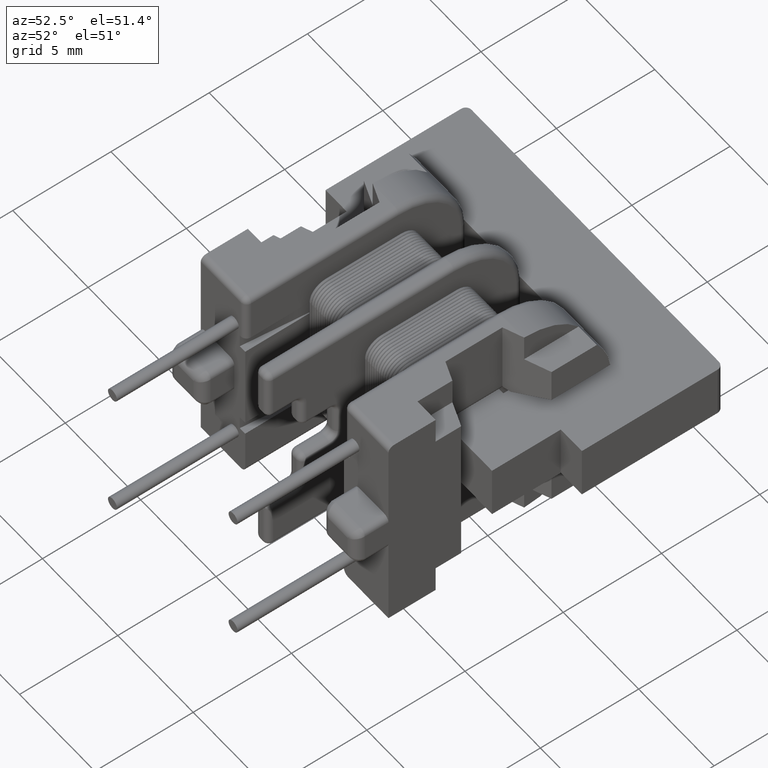
[diagram: clean part render]
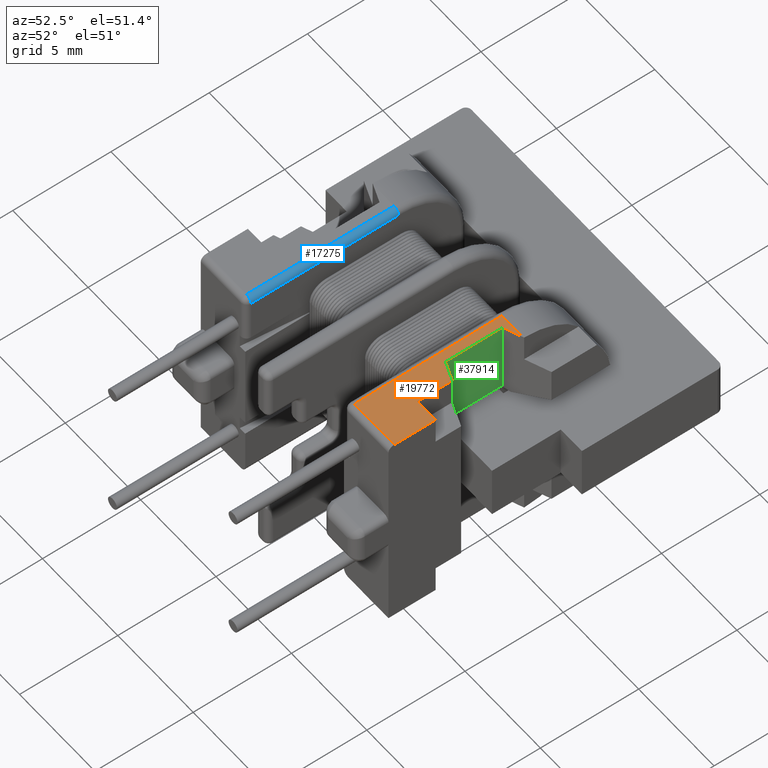
[diagram: same view with three faces highlighted in distinct colors, each labeled with its STEP entity id]
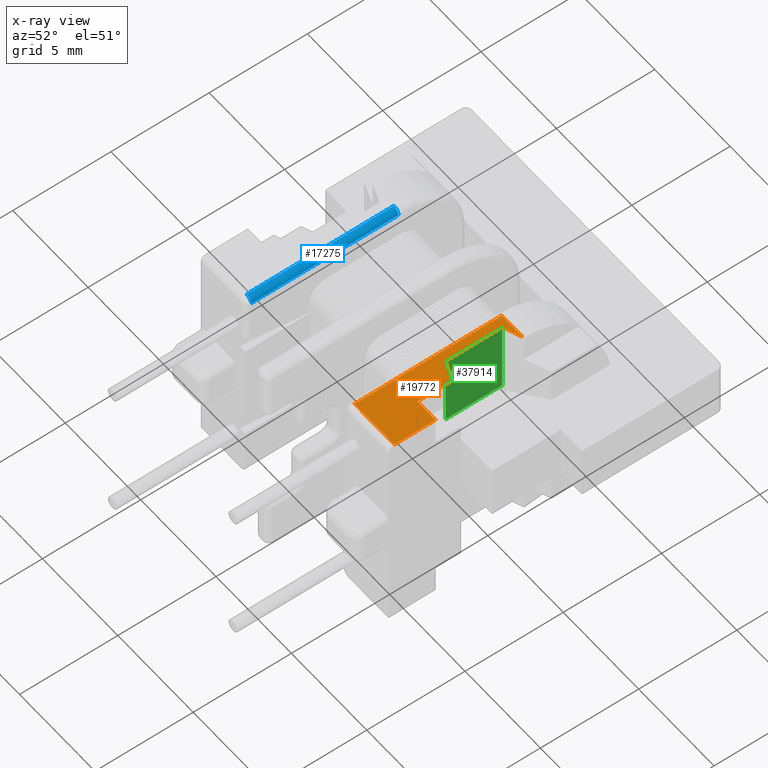
[diagram: x-ray of the same camera — body ghosted, the three highlighted faces saturated]
A machine part, auxiliary view with three faces highlighted in distinct colors.
The next image is the same camera in x-ray (body ghosted, the three faces saturated) — at least one of them is partly hidden behind the body in this view.
Their STEP definitions:

[orange] entity #19772 — the highlighted planar face has unit normal (0, 0, 1).
#346 = EDGE_CURVE ( 'NONE', #30128, #35491, #5046, .T. ) ;
#585 = VECTOR ( 'NONE', #17607, 1000.000000000000114 ) ;
#625 = CARTESIAN_POINT ( 'NONE',  ( 4.128147453515078169, -1.471011783947819396, 5.499999999999999112 ) ) ;
#1152 = ORIENTED_EDGE ( 'NONE', *, *, #21452, .T. ) ;
#1204 = CARTESIAN_POINT ( 'NONE',  ( 4.075000000000001954, -1.455493882711762721, 5.499999999999999112 ) ) ;
#1815 = ORIENTED_EDGE ( 'NONE', *, *, #10596, .T. ) ;
#1975 = ORIENTED_EDGE ( 'NONE', *, *, #28385, .T. ) ;
#2127 = CARTESIAN_POINT ( 'NONE',  ( 5.025000000000003020, 5.300000000000001599, 5.499999999999999112 ) ) ;
#4088 = DIRECTION ( 'NONE',  ( 0.0000000000000000000, 0.0000000000000000000, 1.000000000000000000 ) ) ;
#4110 = DIRECTION ( 'NONE',  ( 0.0000000000000000000, 0.0000000000000000000, 1.000000000000000000 ) ) ;
#4137 = VERTEX_POINT ( 'NONE', #14767 ) ;
#4602 = DIRECTION ( 'NONE',  ( 0.0000000000000000000, -1.000000000000000000, 0.0000000000000000000 ) ) ;
#5046 = LINE ( 'NONE', #8635, #14891 ) ;
#5344 = ORIENTED_EDGE ( 'NONE', *, *, #23810, .F. ) ;
#5636 = LINE ( 'NONE', #6524, #22489 ) ;
#5987 = VECTOR ( 'NONE', #30586, 1000.000000000000000 ) ;
#6524 = CARTESIAN_POINT ( 'NONE',  ( 6.224999999999999645, 5.299999999999999822, 5.499999999999999112 ) ) ;
#6705 = DIRECTION ( 'NONE',  ( 1.000000000000000000, 0.0000000000000000000, -0.0000000000000000000 ) ) ;
#7891 = LINE ( 'NONE', #2127, #22839 ) ;
#8183 = ORIENTED_EDGE ( 'NONE', *, *, #346, .F. ) ;
#8518 = DIRECTION ( 'NONE',  ( 0.9299607201739313878, -0.3676588893710893147, 0.0000000000000000000 ) ) ;
#8635 = CARTESIAN_POINT ( 'NONE',  ( 16.17006545513980953, -6.231770063659924475, 5.499999999999999112 ) ) ;
#9069 = VECTOR ( 'NONE', #23704, 1000.000000000000000 ) ;
#9075 = CARTESIAN_POINT ( 'NONE',  ( 0.0000000000000000000, -3.600000000000000089, 5.499999999999999112 ) ) ;
#10130 = VERTEX_POINT ( 'NONE', #16227 ) ;
#10596 = EDGE_CURVE ( 'NONE', #30128, #27787, #31727, .T. ) ;
#10717 = VECTOR ( 'NONE', #21536, 1000.000000000000000 ) ;
#10970 = LINE ( 'NONE', #9075, #9069 ) ;
#11788 = VERTEX_POINT ( 'NONE', #17204 ) ;
#12005 = CARTESIAN_POINT ( 'NONE',  ( 5.025000000000003020, -3.600000000000000089, 5.499999999999999112 ) ) ;
#12830 = DIRECTION ( 'NONE',  ( 1.000000000000000000, 0.0000000000000000000, 0.0000000000000000000 ) ) ;
#13042 = LINE ( 'NONE', #36475, #10717 ) ;
#14154 = VERTEX_POINT ( 'NONE', #12005 ) ;
#14767 = CARTESIAN_POINT ( 'NONE',  ( 3.574999999999998401, 1.799999999999999600, 5.499999999999999112 ) ) ;
#14891 = VECTOR ( 'NONE', #8518, 1000.000000000000114 ) ;
#15656 = CARTESIAN_POINT ( 'NONE',  ( 5.025000000000003020, -1.825581395348837566, 5.499999999999999112 ) ) ;
#16008 = PLANE ( 'NONE',  #18703 ) ;
#16227 = CARTESIAN_POINT ( 'NONE',  ( 6.225000000000002309, -3.600000000000000089, 5.499999999999999112 ) ) ;
#16333 = CARTESIAN_POINT ( 'NONE',  ( 4.960294117647057632, 1.799999999999998712, 5.499999999999999112 ) ) ;
#16528 = LINE ( 'NONE', #32985, #585 ) ;
#17204 = CARTESIAN_POINT ( 'NONE',  ( 6.224999999999999645, -5.700000000000001066, 5.499999999999999112 ) ) ;
#17607 = DIRECTION ( 'NONE',  ( -0.9299607201739313878, -0.3676588893710893147, 0.0000000000000000000 ) ) ;
#17897 = VERTEX_POINT ( 'NONE', #26652 ) ;
#18563 = ORIENTED_EDGE ( 'NONE', *, *, #20323, .T. ) ;
#18703 = AXIS2_PLACEMENT_3D ( 'NONE', #19120, #4110, #6705 ) ;
#19119 = ORIENTED_EDGE ( 'NONE', *, *, #25136, .T. ) ;
#19120 = CARTESIAN_POINT ( 'NONE',  ( 20.72913734077280523, 5.299999999999999822, 5.499999999999999112 ) ) ;
#19772 = ADVANCED_FACE ( 'NONE', ( #23086 ), #16008, .T. ) ;
#20323 = EDGE_CURVE ( 'NONE', #11788, #10130, #5636, .T. ) ;
#20453 = VECTOR ( 'NONE', #37596, 1000.000000000000000 ) ;
#20782 = ORIENTED_EDGE ( 'NONE', *, *, #34460, .F. ) ;
#21452 = EDGE_CURVE ( 'NONE', #17897, #11788, #38704, .T. ) ;
#21536 = DIRECTION ( 'NONE',  ( -1.000000000000000000, 0.0000000000000000000, 0.0000000000000000000 ) ) ;
#22240 = ORIENTED_EDGE ( 'NONE', *, *, #35738, .F. ) ;
#22377 = LINE ( 'NONE', #27821, #5987 ) ;
#22489 = VECTOR ( 'NONE', #30212, 1000.000000000000000 ) ;
#22648 = CARTESIAN_POINT ( 'NONE',  ( 20.72913734077280523, -5.700000000000001066, 5.499999999999999112 ) ) ;
#22839 = VECTOR ( 'NONE', #4602, 1000.000000000000000 ) ;
#23086 = FACE_OUTER_BOUND ( 'NONE', #30419, .T. ) ;
#23704 = DIRECTION ( 'NONE',  ( 1.000000000000000000, -0.0000000000000000000, 0.0000000000000000000 ) ) ;
#23810 = EDGE_CURVE ( 'NONE', #14154, #10130, #10970, .T. ) ;
#25136 = EDGE_CURVE ( 'NONE', #30208, #4137, #13042, .T. ) ;
#25234 = CARTESIAN_POINT ( 'NONE',  ( 3.574999999999999734, -5.700000000000001066, 5.499999999999999112 ) ) ;
#25431 = LINE ( 'NONE', #25234, #35708 ) ;
#26652 = CARTESIAN_POINT ( 'NONE',  ( 3.574999999999999734, -5.700000000000001954, 5.499999999999999112 ) ) ;
#27787 = VERTEX_POINT ( 'NONE', #1204 ) ;
#27821 = CARTESIAN_POINT ( 'NONE',  ( 4.075000000000001954, 5.299999999999999822, 5.499999999999999112 ) ) ;
#28385 = EDGE_CURVE ( 'NONE', #4137, #17897, #25431, .T. ) ;
#29051 = AXIS2_PLACEMENT_3D ( 'NONE', #30762, #4088, #12830 ) ;
#30128 = VERTEX_POINT ( 'NONE', #625 ) ;
#30208 = VERTEX_POINT ( 'NONE', #16333 ) ;
#30212 = DIRECTION ( 'NONE',  ( 0.0000000000000000000, 1.000000000000000000, 0.0000000000000000000 ) ) ;
#30419 = EDGE_LOOP ( 'NONE', ( #1815, #35833, #22240, #19119, #1975, #1152, #18563, #5344, #20782, #8183 ) ) ;
#30586 = DIRECTION ( 'NONE',  ( 0.0000000000000000000, -1.000000000000000000, 0.0000000000000000000 ) ) ;
#30762 = CARTESIAN_POINT ( 'NONE',  ( 4.017849786703752812, -1.750000000000000444, 5.500000000000000000 ) ) ;
#30981 = DIRECTION ( 'NONE',  ( -0.0000000000000000000, -1.000000000000000000, 0.0000000000000000000 ) ) ;
#31727 = CIRCLE ( 'NONE', #29051, 0.2999999999999999334 ) ;
#32985 = CARTESIAN_POINT ( 'NONE',  ( 19.79429370584140102, 7.664604488355904799, 5.499999999999999112 ) ) ;
#33118 = EDGE_CURVE ( 'NONE', #37009, #27787, #22377, .T. ) ;
#34460 = EDGE_CURVE ( 'NONE', #35491, #14154, #7891, .T. ) ;
#35491 = VERTEX_POINT ( 'NONE', #15656 ) ;
#35611 = CARTESIAN_POINT ( 'NONE',  ( 4.075000000000001954, 1.449999999999999956, 5.500000000000000000 ) ) ;
#35708 = VECTOR ( 'NONE', #30981, 1000.000000000000000 ) ;
#35738 = EDGE_CURVE ( 'NONE', #30208, #37009, #16528, .T. ) ;
#35833 = ORIENTED_EDGE ( 'NONE', *, *, #33118, .F. ) ;
#36475 = CARTESIAN_POINT ( 'NONE',  ( 20.72913734077280523, 1.799999999999999600, 5.499999999999999112 ) ) ;
#37009 = VERTEX_POINT ( 'NONE', #35611 ) ;
#37596 = DIRECTION ( 'NONE',  ( 1.000000000000000000, -0.0000000000000000000, -0.0000000000000000000 ) ) ;
#38704 = LINE ( 'NONE', #22648, #20453 ) ;

[blue] entity #17275 — the highlighted cylindrical surface (edge-blend (fillet) strip) has radius 0.3 mm, axis along (0, -1, 0).
#269 = CARTESIAN_POINT ( 'NONE',  ( -3.574999999999998401, 1.799999999999999600, 5.499999999999999112 ) ) ;
#373 = CARTESIAN_POINT ( 'NONE',  ( -3.274999999999999911, -5.700000000000001066, 5.199999999999999289 ) ) ;
#2069 = ORIENTED_EDGE ( 'NONE', *, *, #14512, .F. ) ;
#3101 = DIRECTION ( 'NONE',  ( 0.0000000000000000000, -1.000000000000000000, 0.0000000000000000000 ) ) ;
#4161 = AXIS2_PLACEMENT_3D ( 'NONE', #15255, #3101, #32872 ) ;
#7094 = DIRECTION ( 'NONE',  ( 0.0000000000000000000, 0.0000000000000000000, -1.000000000000000000 ) ) ;
#7602 = VERTEX_POINT ( 'NONE', #23177 ) ;
#8224 = VECTOR ( 'NONE', #35445, 1000.000000000000000 ) ;
#9353 = VECTOR ( 'NONE', #30627, 1000.000000000000000 ) ;
#9534 = DIRECTION ( 'NONE',  ( 0.0000000000000000000, -1.000000000000000000, 0.0000000000000000000 ) ) ;
#9960 = CARTESIAN_POINT ( 'NONE',  ( -3.574999999999999734, -5.700000000000001066, 5.199999999999999289 ) ) ;
#11835 = VERTEX_POINT ( 'NONE', #15626 ) ;
#14133 = EDGE_CURVE ( 'NONE', #11835, #38631, #38565, .T. ) ;
#14357 = CYLINDRICAL_SURFACE ( 'NONE', #35478, 0.2999999999999999334 ) ;
#14512 = EDGE_CURVE ( 'NONE', #11835, #38129, #35325, .T. ) ;
#15255 = CARTESIAN_POINT ( 'NONE',  ( -3.574999999999999734, 1.799999999999999600, 5.199999999999999289 ) ) ;
#15626 = CARTESIAN_POINT ( 'NONE',  ( -3.274999999999999911, 1.799999999999999600, 5.199999999999999289 ) ) ;
#16991 = CIRCLE ( 'NONE', #18707, 0.2999999999999999334 ) ;
#17275 = ADVANCED_FACE ( 'NONE', ( #31194 ), #14357, .T. ) ;
#17568 = CARTESIAN_POINT ( 'NONE',  ( -3.274999999999999911, -5.700000000000001066, 5.199999999999999289 ) ) ;
#18707 = AXIS2_PLACEMENT_3D ( 'NONE', #9960, #34264, #7094 ) ;
#20520 = ORIENTED_EDGE ( 'NONE', *, *, #14133, .T. ) ;
#21272 = ORIENTED_EDGE ( 'NONE', *, *, #34171, .F. ) ;
#23177 = CARTESIAN_POINT ( 'NONE',  ( -3.574999999999998401, -5.700000000000001066, 5.499999999999999112 ) ) ;
#23983 = EDGE_CURVE ( 'NONE', #38129, #7602, #16991, .T. ) ;
#29177 = EDGE_LOOP ( 'NONE', ( #34923, #2069, #20520, #21272 ) ) ;
#29403 = LINE ( 'NONE', #269, #9353 ) ;
#30175 = CARTESIAN_POINT ( 'NONE',  ( -3.574999999999998401, 5.299999999999999822, 5.199999999999999289 ) ) ;
#30309 = DIRECTION ( 'NONE',  ( 0.0000000000000000000, 0.0000000000000000000, -1.000000000000000000 ) ) ;
#30627 = DIRECTION ( 'NONE',  ( 0.0000000000000000000, 1.000000000000000000, 0.0000000000000000000 ) ) ;
#31194 = FACE_OUTER_BOUND ( 'NONE', #29177, .T. ) ;
#32872 = DIRECTION ( 'NONE',  ( 0.0000000000000000000, 0.0000000000000000000, -1.000000000000000000 ) ) ;
#32992 = CARTESIAN_POINT ( 'NONE',  ( -3.574999999999998401, 1.799999999999999600, 5.499999999999999112 ) ) ;
#34171 = EDGE_CURVE ( 'NONE', #7602, #38631, #29403, .T. ) ;
#34264 = DIRECTION ( 'NONE',  ( 0.0000000000000000000, -1.000000000000000000, 0.0000000000000000000 ) ) ;
#34923 = ORIENTED_EDGE ( 'NONE', *, *, #23983, .F. ) ;
#35325 = LINE ( 'NONE', #17568, #8224 ) ;
#35445 = DIRECTION ( 'NONE',  ( 0.0000000000000000000, -1.000000000000000000, -0.0000000000000000000 ) ) ;
#35478 = AXIS2_PLACEMENT_3D ( 'NONE', #30175, #9534, #30309 ) ;
#38129 = VERTEX_POINT ( 'NONE', #373 ) ;
#38565 = CIRCLE ( 'NONE', #4161, 0.2999999999999999334 ) ;
#38631 = VERTEX_POINT ( 'NONE', #32992 ) ;

[green] entity #37914 — the highlighted planar face has unit normal (-1, 0, -0).
#1039 = LINE ( 'NONE', #21879, #23977 ) ;
#1089 = FACE_OUTER_BOUND ( 'NONE', #30680, .T. ) ;
#1174 = EDGE_CURVE ( 'NONE', #13229, #28398, #7215, .T. ) ;
#1204 = CARTESIAN_POINT ( 'NONE',  ( 4.075000000000001954, -1.455493882711762721, 5.499999999999999112 ) ) ;
#4118 = CARTESIAN_POINT ( 'NONE',  ( 4.075000000000001954, 1.449999999999999956, 1.749999999999999778 ) ) ;
#5983 = CARTESIAN_POINT ( 'NONE',  ( 4.075000000000001954, 1.449999999999999734, 1.760416102808463945 ) ) ;
#5987 = VECTOR ( 'NONE', #30586, 1000.000000000000000 ) ;
#7215 = LINE ( 'NONE', #4118, #22645 ) ;
#8003 = VERTEX_POINT ( 'NONE', #27486 ) ;
#8875 = EDGE_CURVE ( 'NONE', #28398, #8003, #13298, .T. ) ;
#9096 = DIRECTION ( 'NONE',  ( -0.0000000000000000000, -0.0000000000000000000, 1.000000000000000000 ) ) ;
#12033 = CARTESIAN_POINT ( 'NONE',  ( 4.075000000000001954, 1.450101811852192446, 1.755205633526875530 ) ) ;
#13118 = DIRECTION ( 'NONE',  ( -0.0000000000000000000, 1.000000000000000000, -0.0000000000000000000 ) ) ;
#13229 = VERTEX_POINT ( 'NONE', #24008 ) ;
#13298 = B_SPLINE_CURVE_WITH_KNOTS ( 'NONE', 3,
 ( #24158, #12033, #5983, #26915 ),
 .UNSPECIFIED., .F., .F.,
 ( 4, 4 ),
 ( 0.0000000000000000000, 1.562856075615795906E-05 ),
 .UNSPECIFIED. ) ;
#13465 = LINE ( 'NONE', #18350, #30314 ) ;
#16395 = AXIS2_PLACEMENT_3D ( 'NONE', #31561, #37590, #25808 ) ;
#18350 = CARTESIAN_POINT ( 'NONE',  ( 4.075000000000001954, 1.449999999999999956, -5.300000000000000711 ) ) ;
#18405 = ORIENTED_EDGE ( 'NONE', *, *, #19609, .T. ) ;
#18479 = EDGE_CURVE ( 'NONE', #27787, #13229, #1039, .T. ) ;
#19609 = EDGE_CURVE ( 'NONE', #8003, #37009, #13465, .T. ) ;
#19937 = ORIENTED_EDGE ( 'NONE', *, *, #33118, .T. ) ;
#20030 = PLANE ( 'NONE',  #16395 ) ;
#21879 = CARTESIAN_POINT ( 'NONE',  ( 4.075000000000001954, -1.455493882711762721, 5.499999999999999112 ) ) ;
#22377 = LINE ( 'NONE', #27821, #5987 ) ;
#22645 = VECTOR ( 'NONE', #13118, 1000.000000000000000 ) ;
#23735 = ORIENTED_EDGE ( 'NONE', *, *, #1174, .T. ) ;
#23977 = VECTOR ( 'NONE', #33907, 1000.000000000000000 ) ;
#24008 = CARTESIAN_POINT ( 'NONE',  ( 4.075000000000001954, -1.455493882711722753, 1.749999999999999778 ) ) ;
#24158 = CARTESIAN_POINT ( 'NONE',  ( 4.075000000000001954, 1.450303010362164358, 1.749999999999999778 ) ) ;
#25808 = DIRECTION ( 'NONE',  ( -0.0000000000000000000, 0.0000000000000000000, 1.000000000000000000 ) ) ;
#26915 = CARTESIAN_POINT ( 'NONE',  ( 4.075000000000001954, 1.449999999999999956, 1.765625623060516292 ) ) ;
#27486 = CARTESIAN_POINT ( 'NONE',  ( 4.075000000000001954, 1.449999999999999956, 1.765625623060516292 ) ) ;
#27787 = VERTEX_POINT ( 'NONE', #1204 ) ;
#27821 = CARTESIAN_POINT ( 'NONE',  ( 4.075000000000001954, 5.299999999999999822, 5.499999999999999112 ) ) ;
#28086 = CARTESIAN_POINT ( 'NONE',  ( 4.075000000000001954, 1.450303010362164358, 1.749999999999999778 ) ) ;
#28398 = VERTEX_POINT ( 'NONE', #28086 ) ;
#30314 = VECTOR ( 'NONE', #9096, 1000.000000000000000 ) ;
#30586 = DIRECTION ( 'NONE',  ( 0.0000000000000000000, -1.000000000000000000, 0.0000000000000000000 ) ) ;
#30680 = EDGE_LOOP ( 'NONE', ( #19937, #37992, #23735, #38187, #18405 ) ) ;
#31561 = CARTESIAN_POINT ( 'NONE',  ( 4.075000000000001954, 1.449999999999999956, -5.300000000000000711 ) ) ;
#33118 = EDGE_CURVE ( 'NONE', #37009, #27787, #22377, .T. ) ;
#33907 = DIRECTION ( 'NONE',  ( -3.782612041937252243E-16, 1.495451272393798063E-16, -1.000000000000000000 ) ) ;
#35611 = CARTESIAN_POINT ( 'NONE',  ( 4.075000000000001954, 1.449999999999999956, 5.500000000000000000 ) ) ;
#37009 = VERTEX_POINT ( 'NONE', #35611 ) ;
#37590 = DIRECTION ( 'NONE',  ( -1.000000000000000000, 0.0000000000000000000, -0.0000000000000000000 ) ) ;
#37914 = ADVANCED_FACE ( 'NONE', ( #1089 ), #20030, .F. ) ;
#37992 = ORIENTED_EDGE ( 'NONE', *, *, #18479, .T. ) ;
#38187 = ORIENTED_EDGE ( 'NONE', *, *, #8875, .T. ) ;